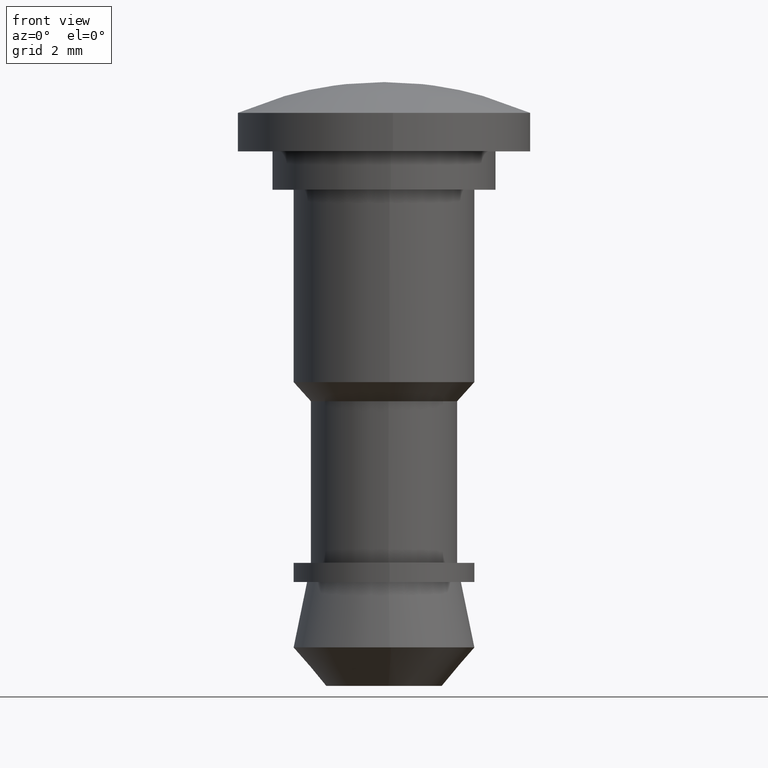
[diagram: clean part render]
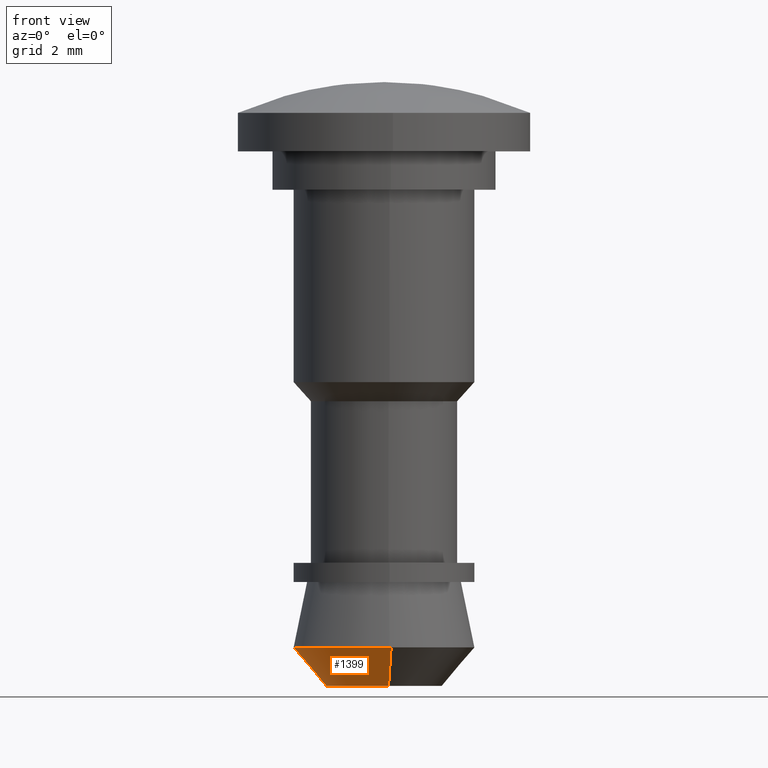
[diagram: same view with one face highlighted and labeled with its STEP entity id]
A machine part, front view. The second image highlights one B-rep face of the part: STEP entity #1399.
In plain terms, the highlighted face is a freeform B-spline surface patch.
Its self-contained STEP definition (entity closure, byte-faithful):
#1188=CARTESIAN_POINT('',(0.143462680551902,-2.345597283323410,-11.899905085086820));
#1189=VERTEX_POINT('',#1188);
#1195=CARTESIAN_POINT('',(0.184377345145986,-2.342736295774616,-11.899905292474889));
#1196=VERTEX_POINT('',#1195);
#1197=CARTESIAN_POINT('',(0.184377345145986,-2.342736295774616,-11.899905292474891));
#1198=CARTESIAN_POINT('',(0.163932401059389,-2.344345347767093,-11.899905292479023));
#1199=CARTESIAN_POINT('',(0.143462680551902,-2.345597283323410,-11.899905085086827));
#1207=(BOUNDED_CURVE()B_SPLINE_CURVE(2,(#1197,#1198,#1199),.UNSPECIFIED.,.F.,.U.)B_SPLINE_CURVE_WITH_KNOTS((3,3),(0.736331300628616,0.739332990840933),.UNSPECIFIED.)CURVE()GEOMETRIC_REPRESENTATION_ITEM()RATIONAL_B_SPLINE_CURVE((0.969723356163153,0.972855505402831,0.976072102966234))REPRESENTATION_ITEM(''));
#1208=EDGE_CURVE('',#1196,#1189,#1207,.T.);
#1248=CARTESIAN_POINT('',(-0.184377345145986,2.342736295774615,-11.899905292474889));
#1249=VERTEX_POINT('',#1248);
#1265=CARTESIAN_POINT('',(-2.349980501392750,0.0,-11.899905292479019));
#1266=VERTEX_POINT('',#1265);
#1267=CARTESIAN_POINT('',(-2.349980501392750,0.0,-11.899905292479019));
#1268=CARTESIAN_POINT('',(-2.349980501392750,2.172299631016881,-11.899905292479023));
#1269=CARTESIAN_POINT('',(-0.184377345145986,2.342736295774615,-11.899905292474884));
#1277=(BOUNDED_CURVE()B_SPLINE_CURVE(2,(#1267,#1268,#1269),.UNSPECIFIED.,.F.,.U.)B_SPLINE_CURVE_WITH_KNOTS((3,3),(0.0,0.236331300628616),.UNSPECIFIED.)CURVE()GEOMETRIC_REPRESENTATION_ITEM()RATIONAL_B_SPLINE_CURVE((1.0,0.723120658610060,0.969723356163153))REPRESENTATION_ITEM(''));
#1278=EDGE_CURVE('',#1266,#1249,#1277,.T.);
#1280=CARTESIAN_POINT('',(0.143462680551902,-2.345597283323410,-11.899905085086829));
#1281=CARTESIAN_POINT('',(0.071798203083470,-2.349980501392750,-11.899905292479025));
#1282=CARTESIAN_POINT('',(0.0,-2.349980501392750,-11.899905292479019));
#1283=CARTESIAN_POINT('',(-2.349980501392750,-2.349980501392750,-11.899905292479025));
#1284=CARTESIAN_POINT('',(-2.349980501392750,0.0,-11.899905292479019));
#1292=(BOUNDED_CURVE()B_SPLINE_CURVE(2,(#1280,#1281,#1282,#1283,#1284),.UNSPECIFIED.,.F.,.U.)B_SPLINE_CURVE_WITH_KNOTS((3,2,3),(0.739332990840932,0.750000000000000,1.0),.UNSPECIFIED.)CURVE()GEOMETRIC_REPRESENTATION_ITEM()RATIONAL_B_SPLINE_CURVE((0.976072102966233,0.987502821409152,1.0,0.707106781186548,1.0))REPRESENTATION_ITEM(''));
#1293=EDGE_CURVE('',#1189,#1266,#1292,.T.);
#1332=CARTESIAN_POINT('',(-0.116013383996317,1.474089809193642,-12.925002367688030));
#1333=CARTESIAN_POINT('',(-1.590103193189958,1.358076425197325,-12.925002367688025));
#1334=CARTESIAN_POINT('',(-1.474089809193642,-0.116013383996317,-12.925002367688030));
#1335=CARTESIAN_POINT('',(-1.358076425197325,-1.590103193189958,-12.925002367688025));
#1336=CARTESIAN_POINT('',(0.116013383996317,-1.474089809193642,-12.925002367688030));
#1337=CARTESIAN_POINT('',(-0.186086444145377,2.364452457937885,-11.874277865598801));
#1338=CARTESIAN_POINT('',(-2.550538902083263,2.178366013792509,-11.874277865598796));
#1339=CARTESIAN_POINT('',(-2.364452457937885,-0.186086444145377,-11.874277865598801));
#1340=CARTESIAN_POINT('',(-2.178366013792509,-2.550538902083263,-11.874277865598796));
#1341=CARTESIAN_POINT('',(0.186086444145377,-2.364452457937885,-11.874277865598801));
#1349=(BOUNDED_SURFACE()B_SPLINE_SURFACE(2,1,((#1332,#1337),(#1333,#1338),(#1334,#1339),(#1335,#1340),(#1336,#1341)),.UNSPECIFIED.,.F.,.F.,.U.)B_SPLINE_SURFACE_WITH_KNOTS((3,2,3),(2,2),(0.0,3.929666954417513,7.859333908835025),(0.0,1.0),.UNSPECIFIED.)GEOMETRIC_REPRESENTATION_ITEM()RATIONAL_B_SPLINE_SURFACE(((1.0,1.0),(0.707106781186548,0.707106781186548),(1.0,1.0),(0.707106781186548,0.707106781186548),(1.0,1.0)))REPRESENTATION_ITEM('')SURFACE());
#1350=ORIENTED_EDGE('',*,*,#1278,.T.);
#1351=CARTESIAN_POINT('',(-0.117680797692838,1.495276308866803,-12.899999999998450));
#1352=VERTEX_POINT('',#1351);
#1353=CARTESIAN_POINT('',(-0.117680797692838,1.495276308866803,-12.899999999998450));
#1354=CARTESIAN_POINT('',(-0.184377345145986,2.342736295774615,-11.899905292474889));
#1355=QUASI_UNIFORM_CURVE('',1,(#1353,#1354),.UNSPECIFIED.,.F.,.U.);
#1356=EDGE_CURVE('',#1352,#1249,#1355,.T.);
#1357=ORIENTED_EDGE('',*,*,#1356,.F.);
#1358=CARTESIAN_POINT('',(-1.499900000000000,0.0,-12.900000000000000));
#1359=VERTEX_POINT('',#1358);
#1360=CARTESIAN_POINT('',(-1.499900000000000,0.0,-12.900000000000000));
#1361=CARTESIAN_POINT('',(-1.499900000000000,1.386493298418538,-12.899999999999999));
#1362=CARTESIAN_POINT('',(-0.117680797692838,1.495276308866803,-12.899999999998453));
#1370=(BOUNDED_CURVE()B_SPLINE_CURVE(2,(#1360,#1361,#1362),.UNSPECIFIED.,.F.,.U.)B_SPLINE_CURVE_WITH_KNOTS((3,3),(0.0,0.236331300630350),.UNSPECIFIED.)CURVE()GEOMETRIC_REPRESENTATION_ITEM()RATIONAL_B_SPLINE_CURVE((1.0,0.723120658608028,0.969723356166772))REPRESENTATION_ITEM(''));
#1371=EDGE_CURVE('',#1359,#1352,#1370,.T.);
#1372=ORIENTED_EDGE('',*,*,#1371,.F.);
#1373=CARTESIAN_POINT('',(0.117680797692838,-1.495276308866802,-12.899999999998450));
#1374=VERTEX_POINT('',#1373);
#1375=CARTESIAN_POINT('',(0.117680797692838,-1.495276308866803,-12.899999999998453));
#1376=CARTESIAN_POINT('',(0.058931231511392,-1.499900000000000,-12.899999999999999));
#1377=CARTESIAN_POINT('',(0.0,-1.499900000000000,-12.900000000000000));
#1378=CARTESIAN_POINT('',(-1.499899999999999,-1.499899999999999,-12.899999999999999));
#1379=CARTESIAN_POINT('',(-1.499900000000000,0.0,-12.900000000000000));
#1387=(BOUNDED_CURVE()B_SPLINE_CURVE(2,(#1375,#1376,#1377,#1378,#1379),.UNSPECIFIED.,.F.,.U.)B_SPLINE_CURVE_WITH_KNOTS((3,2,3),(0.736331300630350,0.750000000000000,1.0),.UNSPECIFIED.)CURVE()GEOMETRIC_REPRESENTATION_ITEM()RATIONAL_B_SPLINE_CURVE((0.969723356166772,0.983986122578519,1.0,0.707106781186547,1.0))REPRESENTATION_ITEM(''));
#1388=EDGE_CURVE('',#1374,#1359,#1387,.T.);
#1389=ORIENTED_EDGE('',*,*,#1388,.F.);
#1390=CARTESIAN_POINT('',(0.117680797692838,-1.495276308866802,-12.899999999998450));
#1391=CARTESIAN_POINT('',(0.184377345145986,-2.342736295774616,-11.899905292474889));
#1392=QUASI_UNIFORM_CURVE('',1,(#1390,#1391),.UNSPECIFIED.,.F.,.U.);
#1393=EDGE_CURVE('',#1374,#1196,#1392,.T.);
#1394=ORIENTED_EDGE('',*,*,#1393,.T.);
#1395=ORIENTED_EDGE('',*,*,#1208,.T.);
#1396=ORIENTED_EDGE('',*,*,#1293,.T.);
#1397=EDGE_LOOP('',(#1350,#1357,#1372,#1389,#1394,#1395,#1396));
#1398=FACE_OUTER_BOUND('',#1397,.T.);
#1399=ADVANCED_FACE('',(#1398),#1349,.T.);